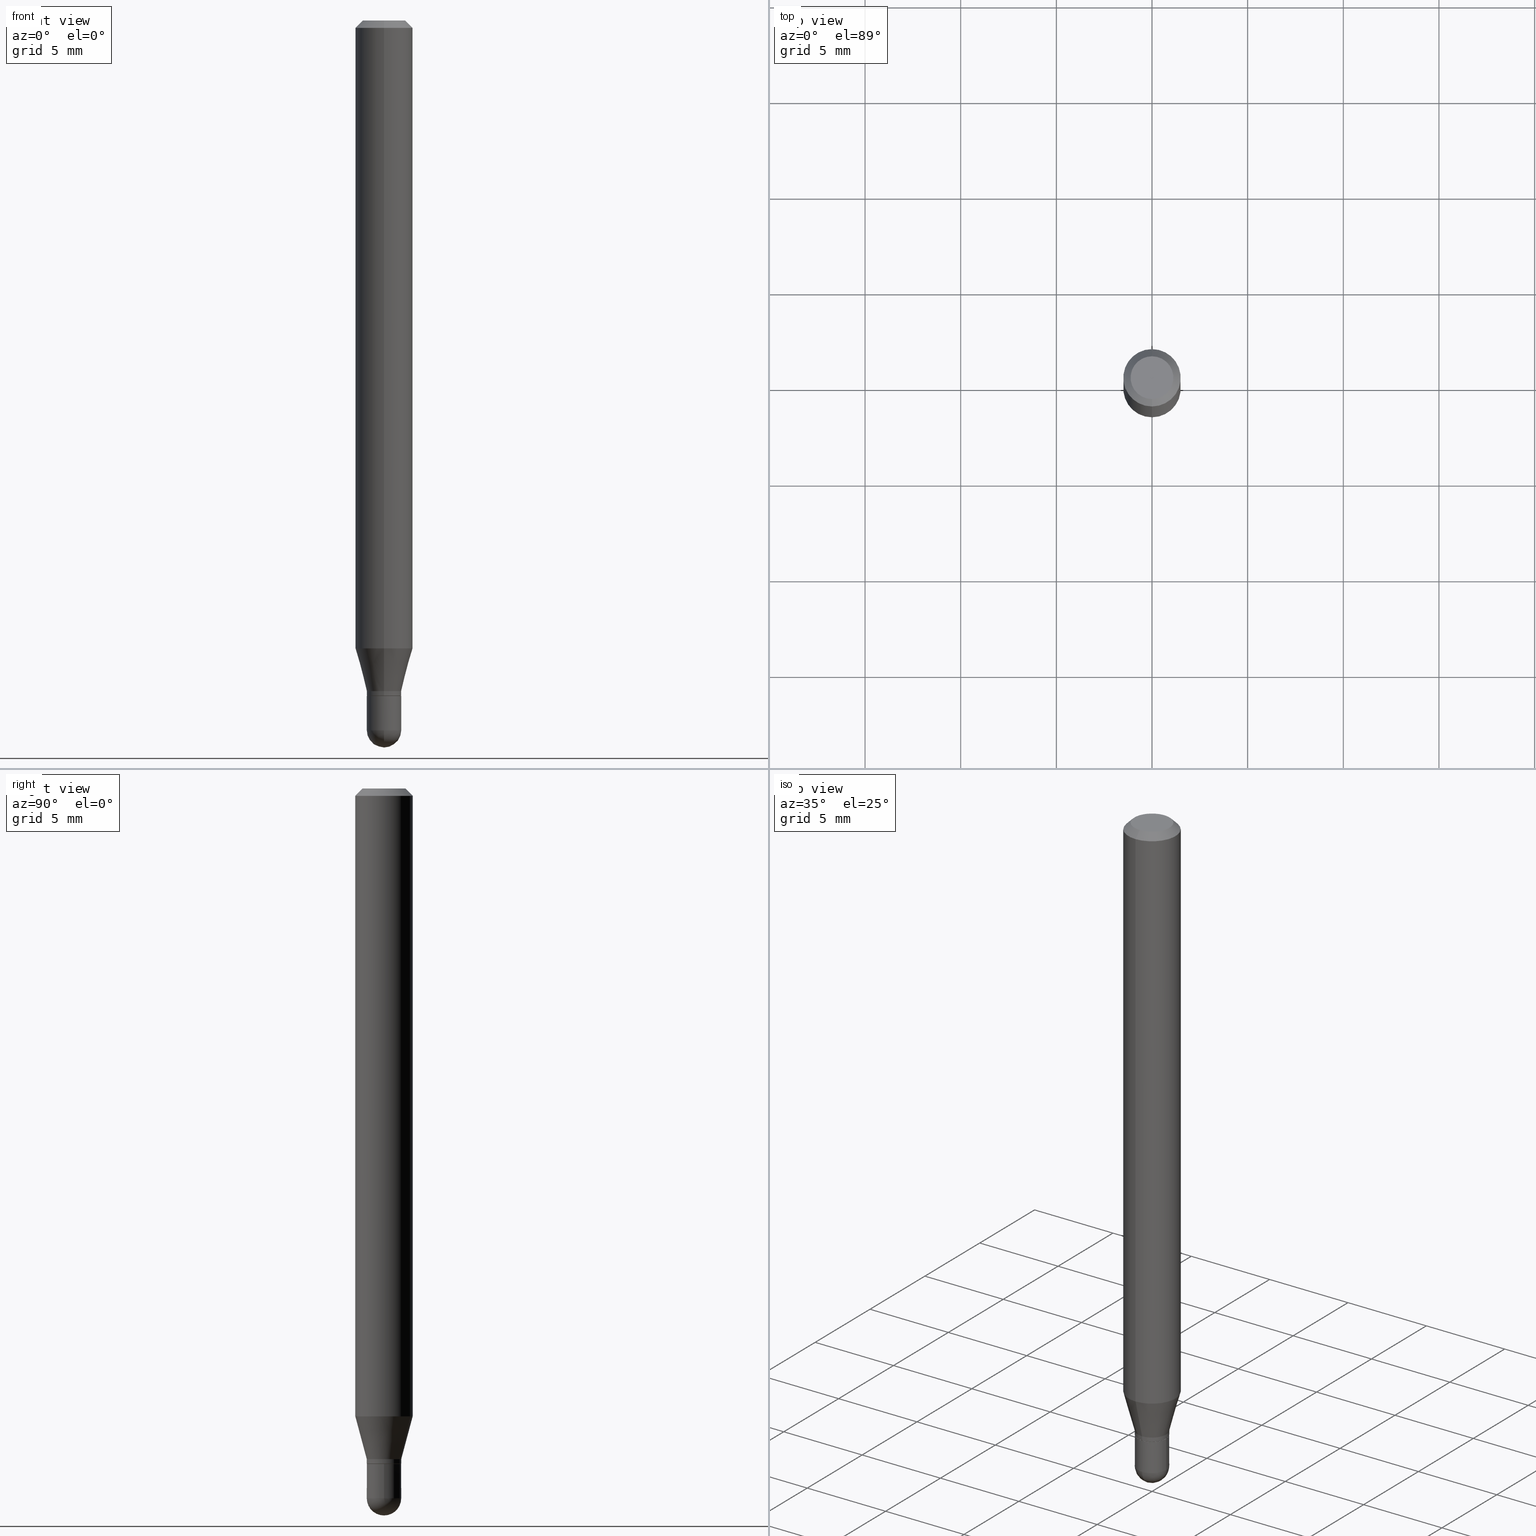
[diagram: canonical four-view strip — front | top / right | iso, engineering-drawing reading convention]
A machine part, canonical four-view strip (front | top / right | iso — engineering-drawing reading convention). The complete STEP part file that produces these views, byte-faithful:
ISO-10303-21;
HEADER;
FILE_DESCRIPTION (( 'STEP AP203' ),
    '1' );
FILE_NAME ('01913.STEP',
    '2024-03-07T19:44:01',
    ( '' ),
    ( '' ),
    'SwSTEP 2.0',
    'SolidWorks 2023',
    '' );
FILE_SCHEMA (( 'CONFIG_CONTROL_DESIGN' ));
ENDSEC;

DATA;
#1 = DIRECTION ( 'NONE',  ( -6.982962677686265133E-15, -1.000000000000000000, 3.491424182678517920E-15 ) ) ;
#2 = CARTESIAN_POINT ( 'NONE',  ( 4.195754854663704065E-16, 0.05904999999999546029, -1.292023600941374362 ) ) ;
#3 = DATE_AND_TIME ( #318, #80 ) ;
#4 = DIRECTION ( 'NONE',  ( 1.000000000000000000, -6.982962677686254089E-15, 0.000000000000000000 ) ) ;
#5 = DIRECTION ( 'NONE',  ( -2.445508718121575604E-29, 3.491424182678518314E-15, 1.000000000000000000 ) ) ;
#6 = VECTOR ( 'NONE', #502, 39.37007874015748143 ) ;
#7 = VERTEX_POINT ( 'NONE', #377 ) ;
#8 = CC_DESIGN_DATE_AND_TIME_ASSIGNMENT ( #96, #294, ( #146 ) ) ;
#9 = DIRECTION ( 'NONE',  ( -2.445508718121575324E-29, 3.491424182678518709E-15, 1.000000000000000000 ) ) ;
#10 = LINE ( 'NONE', #235, #487 ) ;
#11 = LINE ( 'NONE', #28, #357 ) ;
#12 = AXIS2_PLACEMENT_3D ( 'NONE', #129, #289, #251 ) ;
#13 = AXIS2_PLACEMENT_3D ( 'NONE', #308, #371, #18 ) ;
#14 = DIRECTION ( 'NONE',  ( 1.000000000000000000, 0.000000000000000000, 0.000000000000000000 ) ) ;
#15 = CARTESIAN_POINT ( 'NONE',  ( -4.051124067684085231E-16, -0.05905000000000005383, -0.01499999999999981730 ) ) ;
#16 = FACE_OUTER_BOUND ( 'NONE', #314, .T. ) ;
#17 = ORIENTED_EDGE ( 'NONE', *, *, #302, .F. ) ;
#18 = DIRECTION ( 'NONE',  ( -6.982962677686265133E-15, -1.000000000000000000, 0.000000000000000000 ) ) ;
#19 = SPHERICAL_SURFACE ( 'NONE', #446, 0.03544999999999988438 ) ;
#20 = ORIENTED_EDGE ( 'NONE', *, *, #217, .F. ) ;
#21 = CARTESIAN_POINT ( 'NONE',  ( -2.475460269239438146E-16, -0.03545000000000474161, -1.380099999999999660 ) ) ;
#22 = VECTOR ( 'NONE', #505, 39.37007874015748143 ) ;
#23 = EDGE_CURVE ( 'NONE', #208, #194, #413, .T. ) ;
#24 = CIRCLE ( 'NONE', #168, 0.03545000000000000234 ) ;
#25 = EDGE_LOOP ( 'NONE', ( #453, #305, #431, #271 ) ) ;
#26 = ADVANCED_FACE ( 'NONE', ( #16 ), #491, .T. ) ;
#27 = ORIENTED_EDGE ( 'NONE', *, *, #76, .F. ) ;
#28 = CARTESIAN_POINT ( 'NONE',  ( -2.475460269239775877E-16, -0.03544999999999992601, 1.237709872759532056E-16 ) ) ;
#29 = DIRECTION ( 'NONE',  ( 1.000000000000000000, -6.982962677686265922E-15, 4.883557194083112901E-29 ) ) ;
#30 = VERTEX_POINT ( 'NONE', #341 ) ;
#31 = VECTOR ( 'NONE', #330, 39.37007874015748143 ) ;
#32 = AXIS2_PLACEMENT_3D ( 'NONE', #116, #356, #1 ) ;
#33 = LOCAL_TIME ( 14, 44, 1.000000000000000000, #145 ) ;
#34 = VERTEX_POINT ( 'NONE', #193 ) ;
#35 = PERSON ( 'UNSPECIFIED', 'UNSPECIFIED', 'UNSPECIFIED', ('UNSPECIFIED'), ('UNSPECIFIED'), ('UNSPECIFIED') ) ;
#36 = FACE_OUTER_BOUND ( 'NONE', #141, .T. ) ;
#37 = DATE_AND_TIME ( #323, #324 ) ;
#38 = DIRECTION ( 'NONE',  ( -2.445508718121575604E-29, 3.491424182678518314E-15, 1.000000000000000000 ) ) ;
#39 = PRODUCT_DEFINITION_SHAPE ( 'NONE', 'NONE',  #146 ) ;
#40 = DIRECTION ( 'NONE',  ( -6.982962677686266711E-15, -1.000000000000000000, 0.000000000000000000 ) ) ;
#41 = PERSON_AND_ORGANIZATION ( #35, #266 ) ;
#42 = CARTESIAN_POINT ( 'NONE',  ( 5.836148012871053116E-46, -8.332200230911702652E-32, -2.386476061043801026E-17 ) ) ;
#43 = VECTOR ( 'NONE', #367, 39.37007874015748143 ) ;
#44 = LOCAL_TIME ( 14, 44, 1.000000000000000000, #369 ) ;
#45 = CYLINDRICAL_SURFACE ( 'NONE', #425, 0.05904999999999999832 ) ;
#46 = CARTESIAN_POINT ( 'NONE',  ( 3.599717260347271507E-16, 0.04404999999999999888, -1.776619958574267450E-16 ) ) ;
#47 = EDGE_CURVE ( 'NONE', #194, #286, #493, .T. ) ;
#48 = APPLICATION_CONTEXT ( 'configuration controlled 3d designs of mechanical parts and assemblies' ) ;
#49 = CARTESIAN_POINT ( 'NONE',  ( 3.075995059520799729E-16, 0.04404999999999999888, -1.657296155522077399E-16 ) ) ;
#50 = ORIENTED_EDGE ( 'NONE', *, *, #428, .T. ) ;
#51 = AXIS2_PLACEMENT_3D ( 'NONE', #360, #436, #4 ) ;
#52 = ADVANCED_FACE ( 'NONE', ( #459 ), #151, .T. ) ;
#53 = APPROVAL ( #267, 'UNSPECIFIED' ) ;
#54 = ORIENTED_EDGE ( 'NONE', *, *, #434, .T. ) ;
#55 = ORIENTED_EDGE ( 'NONE', *, *, #395, .F. ) ;
#56 = CARTESIAN_POINT ( 'NONE',  ( -4.123439461173736383E-16, -0.05905000000000005383, -0.01499999999999981730 ) ) ;
#57 = ADVANCED_FACE ( 'NONE', ( #102 ), #19, .T. ) ;
#58 =( CONVERSION_BASED_UNIT ( 'INCH', #297 ) LENGTH_UNIT ( ) NAMED_UNIT ( #473 ) );
#59 = CIRCLE ( 'NONE', #485, 0.03544999999999991908 ) ;
#60 = PERSON_AND_ORGANIZATION ( #35, #266 ) ;
#61 = DIRECTION ( 'NONE',  ( -6.982962677686266711E-15, -1.000000000000000000, 0.000000000000000000 ) ) ;
#62 = VERTEX_POINT ( 'NONE', #372 ) ;
#63 = ADVANCED_FACE ( 'NONE', ( #67 ), #162, .T. ) ;
#64 = DIRECTION ( 'NONE',  ( 1.000000000000000000, -6.982962677686254089E-15, 0.000000000000000000 ) ) ;
#65 = EDGE_CURVE ( 'NONE', #236, #381, #165, .T. ) ;
#66 = DIRECTION ( 'NONE',  ( 2.445508718121575324E-29, -3.491424182678518709E-15, -1.000000000000000000 ) ) ;
#67 = FACE_OUTER_BOUND ( 'NONE', #483, .T. ) ;
#68 = ORIENTED_EDGE ( 'NONE', *, *, #396, .F. ) ;
#69 = AXIS2_PLACEMENT_3D ( 'NONE', #451, #105, #64 ) ;
#70 = ORIENTED_EDGE ( 'NONE', *, *, #160, .T. ) ;
#71 = CARTESIAN_POINT ( 'NONE',  ( 3.398768016445365627E-29, -4.852381329086605500E-15, -1.389799999999999924 ) ) ;
#72 = DIRECTION ( 'NONE',  ( -6.982962677686265922E-15, -1.000000000000000000, 4.626330217890369336E-15 ) ) ;
#73 = ORIENTED_EDGE ( 'NONE', *, *, #218, .T. ) ;
#74 = EDGE_CURVE ( 'NONE', #91, #208, #411, .T. ) ;
#75 = CARTESIAN_POINT ( 'NONE',  ( 3.571974011754319692E-29, -5.099832217581240718E-15, -1.460650000000000004 ) ) ;
#76 = EDGE_CURVE ( 'NONE', #7, #104, #355, .T. ) ;
#77 = ORIENTED_EDGE ( 'NONE', *, *, #243, .F. ) ;
#78 = DIRECTION ( 'NONE',  ( -2.445468806185136597E-29, 3.491481338843145583E-15, 1.000000000000000000 ) ) ;
#79 = VECTOR ( 'NONE', #9, 39.37007874015748143 ) ;
#80 = LOCAL_TIME ( 14, 44, 1.000000000000000000, #82 ) ;
#81 = EDGE_CURVE ( 'NONE', #303, #286, #204, .T. ) ;
#82 = COORDINATED_UNIVERSAL_TIME_OFFSET ( 5, 0, .BEHIND. ) ;
#83 = DIRECTION ( 'NONE',  ( -2.445468806185136597E-29, 3.491481338843145583E-15, 1.000000000000000000 ) ) ;
#84 = APPROVAL_ROLE ( '' ) ;
#85 = CIRCLE ( 'NONE', #368, 0.05904999999999999832 ) ;
#86 = ORIENTED_EDGE ( 'NONE', *, *, #217, .T. ) ;
#87 = DIRECTION ( 'NONE',  ( 1.000000000000000000, -6.982962677686254089E-15, 0.000000000000000000 ) ) ;
#88 = DIRECTION ( 'NONE',  ( -2.445508718121575604E-29, 3.491424182678518314E-15, 1.000000000000000000 ) ) ;
#89 = CALENDAR_DATE ( 2024, 7, 3 ) ;
#90 = FACE_OUTER_BOUND ( 'NONE', #450, .T. ) ;
#91 = VERTEX_POINT ( 'NONE', #157 ) ;
#92 = CIRCLE ( 'NONE', #188, 0.03495000000000000190 ) ;
#93 = VECTOR ( 'NONE', #98, 39.37007874015748143 ) ;
#94 = DATE_AND_TIME ( #292, #33 ) ;
#95 = APPLICATION_PROTOCOL_DEFINITION ( 'international standard', 'config_control_design', 1994, #97 ) ;
#96 = DATE_AND_TIME ( #350, #387 ) ;
#97 = APPLICATION_CONTEXT ( 'configuration controlled 3d designs of mechanical parts and assemblies' ) ;
#98 = DIRECTION ( 'NONE',  ( -2.445508718121575324E-29, 3.491424182678518709E-15, 1.000000000000000000 ) ) ;
#99 = LINE ( 'NONE', #415, #293 ) ;
#100 = AXIS2_PLACEMENT_3D ( 'NONE', #42, #88, #212 ) ;
#101 = CIRCLE ( 'NONE', #13, 0.03544999999999992601 ) ;
#102 = FACE_OUTER_BOUND ( 'NONE', #186, .T. ) ;
#103 = APPROVAL_DATE_TIME ( #435, #53 ) ;
#104 = VERTEX_POINT ( 'NONE', #310 ) ;
#105 = DIRECTION ( 'NONE',  ( -2.445468806185136597E-29, 3.491481338843145583E-15, 1.000000000000000000 ) ) ;
#106 = ORIENTED_EDGE ( 'NONE', *, *, #404, .F. ) ;
#107 = ORIENTED_EDGE ( 'NONE', *, *, #353, .F. ) ;
#108 = EDGE_CURVE ( 'NONE', #223, #194, #221, .T. ) ;
#109 = ORIENTED_EDGE ( 'NONE', *, *, #113, .F. ) ;
#110 = CIRCLE ( 'NONE', #100, 0.04404999999999999888 ) ;
#111 = SECURITY_CLASSIFICATION ( '', '', #486 ) ;
#112 = ORIENTED_EDGE ( 'NONE', *, *, #325, .F. ) ;
#113 = EDGE_CURVE ( 'NONE', #469, #286, #497, .T. ) ;
#114 = ADVANCED_FACE ( 'NONE', ( #470 ), #299, .T. ) ;
#115 = ORIENTED_EDGE ( 'NONE', *, *, #478, .F. ) ;
#116 = CARTESIAN_POINT ( 'NONE',  ( 0.000000000000000000, 0.000000000000000000, 0.000000000000000000 ) ) ;
#117 = CLOSED_SHELL ( 'NONE', ( #125, #57, #392, #26, #126 ) ) ;
#118 = DIRECTION ( 'NONE',  ( -1.000000000000000000, 6.982962677686265922E-15, -4.883557194083112340E-29 ) ) ;
#119 = FACE_OUTER_BOUND ( 'NONE', #336, .T. ) ;
#120 = AXIS2_PLACEMENT_3D ( 'NONE', #291, #178, #219 ) ;
#121 = DIRECTION ( 'NONE',  ( -6.982962677686265133E-15, -1.000000000000000000, 0.000000000000000000 ) ) ;
#122 = FACE_OUTER_BOUND ( 'NONE', #477, .T. ) ;
#123 = CARTESIAN_POINT ( 'NONE',  ( 3.568942447259178762E-29, -5.104173590484217431E-15, -1.460650000000000004 ) ) ;
#124 = DIRECTION ( 'NONE',  ( -6.982962677686265133E-15, -1.000000000000000000, 3.491424182678518314E-15 ) ) ;
#125 = ADVANCED_FACE ( 'NONE', ( #424 ), #349, .T. ) ;
#126 = ADVANCED_FACE ( 'NONE', ( #249 ), #315, .T. ) ;
#127 = DIRECTION ( 'NONE',  ( 7.105427357601000281E-15, 1.000000000000000000, 0.000000000000000000 ) ) ;
#128 = FACE_OUTER_BOUND ( 'NONE', #433, .T. ) ;
#129 = CARTESIAN_POINT ( 'NONE',  ( 3.375046581879585142E-29, -4.818514514514622023E-15, -1.380099999999999660 ) ) ;
#130 = AXIS2_PLACEMENT_3D ( 'NONE', #506, #284, #277 ) ;
#131 = CARTESIAN_POINT ( 'NONE',  ( 3.375046581879585142E-29, -4.818514514514622023E-15, -1.380099999999999660 ) ) ;
#132 = CIRCLE ( 'NONE', #155, 0.03545000000000000234 ) ;
#133 = ADVANCED_FACE ( 'NONE', ( #467 ), #279, .T. ) ;
#134 = CC_DESIGN_PERSON_AND_ORGANIZATION_ASSIGNMENT ( #228, #327, ( #190 ) ) ;
#135 = COORDINATED_UNIVERSAL_TIME_OFFSET ( 5, 0, .BEHIND. ) ;
#136 = AXIS2_PLACEMENT_3D ( 'NONE', #388, #504, #40 ) ;
#137 = CIRCLE ( 'NONE', #419, 0.05904999999999999832 ) ;
#138 = FACE_OUTER_BOUND ( 'NONE', #414, .T. ) ;
#139 = CC_DESIGN_PERSON_AND_ORGANIZATION_ASSIGNMENT ( #481, #332, ( #111 ) ) ;
#140 = APPLICATION_PROTOCOL_DEFINITION ( 'international standard', 'config_control_design', 1994, #48 ) ;
#141 = EDGE_LOOP ( 'NONE', ( #373, #465, #109, #328 ) ) ;
#142 = ORIENTED_EDGE ( 'NONE', *, *, #478, .T. ) ;
#143 = CIRCLE ( 'NONE', #51, 0.03545000000000000234 ) ;
#144 = DIRECTION ( 'NONE',  ( -1.000000000000000000, 6.982962677686265922E-15, -4.876176775795935793E-29 ) ) ;
#145 = COORDINATED_UNIVERSAL_TIME_OFFSET ( 5, 0, .BEHIND. ) ;
#146 = PRODUCT_DEFINITION ( 'UNKNOWN', '', #190, #163 ) ;
#147 = DIRECTION ( 'NONE',  ( 1.000000000000000000, -6.982962677686265922E-15, 4.883557194083112901E-29 ) ) ;
#148 = VERTEX_POINT ( 'NONE', #466 ) ;
#149 = DIRECTION ( 'NONE',  ( -6.982962677686265133E-15, -1.000000000000000000, 0.000000000000000000 ) ) ;
#150 = ORIENTED_EDGE ( 'NONE', *, *, #161, .F. ) ;
#151 = CYLINDRICAL_SURFACE ( 'NONE', #244, 0.05904999999999999832 ) ;
#152 = EDGE_LOOP ( 'NONE', ( #274, #393, #270, #412 ) ) ;
#153 = CARTESIAN_POINT ( 'NONE',  ( 0.03545000000000000234, -5.223692518076700144E-15, -1.460650000000000004 ) ) ;
#154 = AXIS2_PLACEMENT_3D ( 'NONE', #169, #312, #282 ) ;
#155 = AXIS2_PLACEMENT_3D ( 'NONE', #374, #296, #443 ) ;
#156 = ORIENTED_EDGE ( 'NONE', *, *, #439, .F. ) ;
#157 = CARTESIAN_POINT ( 'NONE',  ( -2.475460269239438146E-16, -0.03545000000000474161, -1.380099999999999660 ) ) ;
#158 = DIRECTION ( 'NONE',  ( -6.982962677686265133E-15, -1.000000000000000000, 0.000000000000000000 ) ) ;
#159 = CARTESIAN_POINT ( 'NONE',  ( 3.357314426466797821E-16, 0.03544999999999510348, -1.380099999999999660 ) ) ;
#160 = EDGE_CURVE ( 'NONE', #148, #309, #475, .T. ) ;
#161 = EDGE_CURVE ( 'NONE', #194, #223, #85, .T. ) ;
#162 = CYLINDRICAL_SURFACE ( 'NONE', #458, 0.03544999999999992601 ) ;
#163 = DESIGN_CONTEXT ( 'detailed design', #48, 'design' ) ;
#164 = ORIENTED_EDGE ( 'NONE', *, *, #243, .T. ) ;
#165 = CIRCLE ( 'NONE', #154, 0.03544999999999992601 ) ;
#166 = AXIS2_PLACEMENT_3D ( 'NONE', #455, #484, #61 ) ;
#167 = EDGE_CURVE ( 'NONE', #234, #303, #110, .T. ) ;
#168 = AXIS2_PLACEMENT_3D ( 'NONE', #171, #83, #87 ) ;
#169 = CARTESIAN_POINT ( 'NONE',  ( 3.397545262086305725E-29, -4.850635616995266153E-15, -1.389300000000000201 ) ) ;
#170 = PLANE ( 'NONE',  #245 ) ;
#171 = CARTESIAN_POINT ( 'NONE',  ( 3.398712546836102570E-29, -4.852460764724203802E-15, -1.389799999999999924 ) ) ;
#172 = DIRECTION ( 'NONE',  ( 1.000000000000000000, -6.982962677686266711E-15, 4.876176775795935793E-29 ) ) ;
#173 = LINE ( 'NONE', #437, #43 ) ;
#174 = CARTESIAN_POINT ( 'NONE',  ( -3.536586717851222218E-16, -0.04404999999999999888, 1.299324746365507245E-16 ) ) ;
#175 = ORIENTED_EDGE ( 'NONE', *, *, #207, .F. ) ;
#176 = ADVANCED_FACE ( 'NONE', ( #119 ), #209, .T. ) ;
#177 = ADVANCED_FACE ( 'NONE', ( #36 ), #45, .T. ) ;
#178 = DIRECTION ( 'NONE',  ( -2.445468806185136597E-29, 3.491481338843145583E-15, 1.000000000000000000 ) ) ;
#179 = DIRECTION ( 'NONE',  ( -2.445508718121575604E-29, 3.491424182678518314E-15, 1.000000000000000000 ) ) ;
#180 = AXIS2_PLACEMENT_3D ( 'NONE', #317, #248, #394 ) ;
#181 = DIRECTION ( 'NONE',  ( -6.982962677686266711E-15, -1.000000000000000000, 0.000000000000000000 ) ) ;
#182 = DIRECTION ( 'NONE',  ( -2.445508718121575604E-29, 3.491424182678518314E-15, 1.000000000000000000 ) ) ;
#183 = APPROVAL_ROLE ( '' ) ;
#184 = DIRECTION ( 'NONE',  ( -6.982962677686265922E-15, -1.000000000000000000, 3.491424182678518709E-15 ) ) ;
#185 = ORIENTED_EDGE ( 'NONE', *, *, #448, .T. ) ;
#186 = EDGE_LOOP ( 'NONE', ( #20, #70, #489, #106 ) ) ;
#187 = DIRECTION ( 'NONE',  ( 5.024295867788190974E-15, 0.7071067811865681119, 0.7071067811865270336 ) ) ;
#188 = AXIS2_PLACEMENT_3D ( 'NONE', #490, #333, #149 ) ;
#189 = LINE ( 'NONE', #326, #79 ) ;
#190 = PRODUCT_DEFINITION_FORMATION_WITH_SPECIFIED_SOURCE ( 'ANY', '', #503, .NOT_KNOWN. ) ;
#191 = ADVANCED_BREP_SHAPE_REPRESENTATION ( '01913', ( #233, #390, #480 ), #215 ) ;
#192 = DIRECTION ( 'NONE',  ( 6.982962677686265922E-15, 1.000000000000000000, -3.491424182678518709E-15 ) ) ;
#193 = CARTESIAN_POINT ( 'NONE',  ( -0.03545000000000000234, -4.724259091325766875E-15, -1.389799999999999924 ) ) ;
#194 = VERTEX_POINT ( 'NONE', #2 ) ;
#195 = FACE_OUTER_BOUND ( 'NONE', #25, .T. ) ;
#196 = CC_DESIGN_PERSON_AND_ORGANIZATION_ASSIGNMENT ( #405, #482, ( #503 ) ) ;
#197 = ORIENTED_EDGE ( 'NONE', *, *, #207, .T. ) ;
#198 = EDGE_LOOP ( 'NONE', ( #107, #379 ) ) ;
#199 = DIRECTION ( 'NONE',  ( -2.445508718121575604E-29, 3.491424182678518314E-15, 1.000000000000000000 ) ) ;
#200 = ORIENTED_EDGE ( 'NONE', *, *, #448, .F. ) ;
#201 = ORIENTED_EDGE ( 'NONE', *, *, #226, .T. ) ;
#202 = AXIS2_PLACEMENT_3D ( 'NONE', #123, #359, #127 ) ;
#203 = CONICAL_SURFACE ( 'NONE', #426, 0.05904999999999999832, 0.7853981633974483900 ) ;
#204 = LINE ( 'NONE', #346, #6 ) ;
#205 = ORIENTED_EDGE ( 'NONE', *, *, #399, .F. ) ;
#206 = DIRECTION ( 'NONE',  ( -2.445508718121575604E-29, 3.491424182678518314E-15, 1.000000000000000000 ) ) ;
#207 = EDGE_CURVE ( 'NONE', #7, #34, #173, .T. ) ;
#208 = VERTEX_POINT ( 'NONE', #159 ) ;
#209 = CYLINDRICAL_SURFACE ( 'NONE', #32, 0.03544999999999992601 ) ;
#210 = PERSON_AND_ORGANIZATION ( #35, #266 ) ;
#211 = ADVANCED_FACE ( 'NONE', ( #122 ), #418, .T. ) ;
#212 = DIRECTION ( 'NONE',  ( -6.982962677686265133E-15, -1.000000000000000000, 3.491424182678518314E-15 ) ) ;
#213 = APPROVAL_DATE_TIME ( #37, #429 ) ;
#214 = AXIS2_PLACEMENT_3D ( 'NONE', #71, #498, #158 ) ;
#215 =( GEOMETRIC_REPRESENTATION_CONTEXT ( 3 ) GLOBAL_UNCERTAINTY_ASSIGNED_CONTEXT ( ( #421 ) ) GLOBAL_UNIT_ASSIGNED_CONTEXT ( ( #58, #445, #500 ) ) REPRESENTATION_CONTEXT ( 'NONE', 'WORKASPACE' ) );
#216 = DIRECTION ( 'NONE',  ( -6.982962677686265922E-15, -1.000000000000000000, 3.491424182678517920E-15 ) ) ;
#217 = EDGE_CURVE ( 'NONE', #148, #104, #447, .T. ) ;
#218 = EDGE_CURVE ( 'NONE', #62, #276, #397, .T. ) ;
#219 = DIRECTION ( 'NONE',  ( 1.000000000000000000, -6.982962677686254089E-15, 0.000000000000000000 ) ) ;
#220 = PERSON_AND_ORGANIZATION ( #35, #266 ) ;
#221 = CIRCLE ( 'NONE', #229, 0.05904999999999999832 ) ;
#222 = APPROVAL_PERSON_ORGANIZATION ( #41, #429, #389 ) ;
#223 = VERTEX_POINT ( 'NONE', #246 ) ;
#224 = ADVANCED_FACE ( 'NONE', ( #510 ), #170, .F. ) ;
#225 = DIRECTION ( 'NONE',  ( -6.982962677686265922E-15, -1.000000000000000000, 3.505890868245046092E-15 ) ) ;
#226 = EDGE_CURVE ( 'NONE', #303, #234, #402, .T. ) ;
#227 = LINE ( 'NONE', #21, #512 ) ;
#228 = PERSON_AND_ORGANIZATION ( #35, #266 ) ;
#229 = AXIS2_PLACEMENT_3D ( 'NONE', #463, #179, #72 ) ;
#230 = DIRECTION ( 'NONE',  ( -2.445508718121575604E-29, 3.491424182678518314E-15, 1.000000000000000000 ) ) ;
#231 = CC_DESIGN_APPROVAL ( #53, ( #146 ) ) ;
#232 = CARTESIAN_POINT ( 'NONE',  ( 2.518873998269886647E-16, 0.03544999999999510348, -1.380099999999999660 ) ) ;
#233 = MANIFOLD_SOLID_BREP ( 'Body-Move/Copy2[1]', #117 ) ;
#234 = VERTEX_POINT ( 'NONE', #174 ) ;
#235 = CARTESIAN_POINT ( 'NONE',  ( 2.483346861481889988E-16, 0.03494999999999514467, -1.389799999999999924 ) ) ;
#236 = VERTEX_POINT ( 'NONE', #430 ) ;
#237 = AXIS2_PLACEMENT_3D ( 'NONE', #441, #230, #260 ) ;
#238 = ORIENTED_EDGE ( 'NONE', *, *, #47, .F. ) ;
#239 = ORIENTED_EDGE ( 'NONE', *, *, #399, .T. ) ;
#240 = DIRECTION ( 'NONE',  ( -2.445468806185136597E-29, 3.491481338843145583E-15, 1.000000000000000000 ) ) ;
#241 = CARTESIAN_POINT ( 'NONE',  ( 4.195754854663708995E-16, 0.05904999999999994975, -0.01500000000000023016 ) ) ;
#242 = EDGE_LOOP ( 'NONE', ( #175, #457, #385, #337, #200 ) ) ;
#243 = EDGE_CURVE ( 'NONE', #208, #91, #59, .T. ) ;
#244 = AXIS2_PLACEMENT_3D ( 'NONE', #306, #449, #488 ) ;
#245 = AXIS2_PLACEMENT_3D ( 'NONE', #313, #363, #184 ) ;
#246 = CARTESIAN_POINT ( 'NONE',  ( -4.123439461173425769E-16, -0.05905000000000454330, -1.292023600941373696 ) ) ;
#247 = ORIENTED_EDGE ( 'NONE', *, *, #408, .T. ) ;
#248 = DIRECTION ( 'NONE',  ( -2.445468806185136597E-29, 3.491481338843145583E-15, 1.000000000000000000 ) ) ;
#249 = FACE_OUTER_BOUND ( 'NONE', #242, .T. ) ;
#250 = PERSON_AND_ORGANIZATION ( #35, #266 ) ;
#251 = DIRECTION ( 'NONE',  ( -6.982962677686266711E-15, -1.000000000000000000, 0.000000000000000000 ) ) ;
#252 = ORIENTED_EDGE ( 'NONE', *, *, #434, .F. ) ;
#253 = AXIS2_PLACEMENT_3D ( 'NONE', #75, #240, #382 ) ;
#254 = CC_DESIGN_SECURITY_CLASSIFICATION ( #111, ( #190 ) ) ;
#255 = PLANE ( 'NONE',  #440 ) ;
#256 = EDGE_CURVE ( 'NONE', #223, #469, #189, .T. ) ;
#257 = CONICAL_SURFACE ( 'NONE', #237, 0.03495000000000000190, 0.7853981633974739252 ) ;
#258 = CC_DESIGN_PERSON_AND_ORGANIZATION_ASSIGNMENT ( #210, #352, ( #190 ) ) ;
#259 = DIRECTION ( 'NONE',  ( 0.000000000000000000, 0.000000000000000000, 1.000000000000000000 ) ) ;
#260 = DIRECTION ( 'NONE',  ( -6.982962677686265133E-15, -1.000000000000000000, 0.000000000000000000 ) ) ;
#261 =( LENGTH_UNIT ( ) NAMED_UNIT ( * ) SI_UNIT ( $, .METRE. ) );
#262 = VECTOR ( 'NONE', #370, 39.37007874015748143 ) ;
#263 = ADVANCED_FACE ( 'NONE', ( #295 ), #257, .T. ) ;
#264 = ORIENTED_EDGE ( 'NONE', *, *, #81, .T. ) ;
#265 = AXIS2_PLACEMENT_3D ( 'NONE', #354, #278, #427 ) ;
#266 = ORGANIZATION ( 'UNSPECIFIED', 'UNSPECIFIED', '' ) ;
#267 = APPROVAL_STATUS ( 'not_yet_approved' ) ;
#268 = EDGE_LOOP ( 'NONE', ( #476, #417, #264, #54 ) ) ;
#269 = CARTESIAN_POINT ( 'NONE',  ( -2.440545455851010047E-16, -0.03495000000000485219, -1.389799999999999924 ) ) ;
#270 = ORIENTED_EDGE ( 'NONE', *, *, #108, .F. ) ;
#271 = ORIENTED_EDGE ( 'NONE', *, *, #81, .F. ) ;
#272 = AXIS2_PLACEMENT_3D ( 'NONE', #287, #78, #172 ) ;
#273 = APPROVAL_PERSON_ORGANIZATION ( #60, #53, #183 ) ;
#274 = ORIENTED_EDGE ( 'NONE', *, *, #74, .T. ) ;
#275 = EDGE_CURVE ( 'NONE', #234, #469, #410, .T. ) ;
#276 = VERTEX_POINT ( 'NONE', #269 ) ;
#277 = DIRECTION ( 'NONE',  ( 6.982962677686265922E-15, 1.000000000000000000, -3.505890868245046092E-15 ) ) ;
#278 = DIRECTION ( 'NONE',  ( -2.445508718121575604E-29, 3.491424182678518314E-15, 1.000000000000000000 ) ) ;
#279 = CONICAL_SURFACE ( 'NONE', #136, 0.03544999999999991908, 0.2617993877991501850 ) ;
#280 = DIRECTION ( 'NONE',  ( -6.982962677686265922E-15, -1.000000000000000000, 4.626330217890369336E-15 ) ) ;
#281 = CARTESIAN_POINT ( 'NONE',  ( 0.000000000000000000, 0.000000000000000000, 0.000000000000000000 ) ) ;
#282 = DIRECTION ( 'NONE',  ( -6.982962677686265133E-15, -1.000000000000000000, 0.000000000000000000 ) ) ;
#283 = CARTESIAN_POINT ( 'NONE',  ( 0.03545000000000000234, -2.475460269239781793E-16, 1.728604667019659440E-30 ) ) ;
#284 = DIRECTION ( 'NONE',  ( 2.445508718121575604E-29, -3.491424182678518314E-15, -1.000000000000000000 ) ) ;
#285 = CARTESIAN_POINT ( 'NONE',  ( 5.836148012871053116E-46, -8.332200230911702652E-32, -2.386476061043801026E-17 ) ) ;
#286 = VERTEX_POINT ( 'NONE', #241 ) ;
#287 = CARTESIAN_POINT ( 'NONE',  ( 0.000000000000000000, 0.000000000000000000, 0.000000000000000000 ) ) ;
#288 = AXIS2_PLACEMENT_3D ( 'NONE', #285, #321, #124 ) ;
#289 = DIRECTION ( 'NONE',  ( -2.445508718121575604E-29, 3.491424182678518314E-15, 1.000000000000000000 ) ) ;
#290 = APPROVAL_STATUS ( 'not_yet_approved' ) ;
#291 = CARTESIAN_POINT ( 'NONE',  ( 3.571974011754319692E-29, -5.099832217581240718E-15, -1.460650000000000004 ) ) ;
#292 = CALENDAR_DATE ( 2024, 7, 3 ) ;
#293 = VECTOR ( 'NONE', #301, 39.37007874015748143 ) ;
#294 = DATE_TIME_ROLE ( 'creation_date' ) ;
#295 = FACE_OUTER_BOUND ( 'NONE', #300, .T. ) ;
#296 = DIRECTION ( 'NONE',  ( -2.445468806185136597E-29, 3.491481338843145583E-15, 1.000000000000000000 ) ) ;
#297 = LENGTH_MEASURE_WITH_UNIT ( LENGTH_MEASURE( 0.02539999999999999897 ), #261 );
#298 = APPROVAL_DATE_TIME ( #3, #401 ) ;
#299 = CONICAL_SURFACE ( 'NONE', #130, 0.05904999999999999832, 0.7853981633974483900 ) ;
#300 = EDGE_LOOP ( 'NONE', ( #205, #73, #460, #156 ) ) ;
#301 = DIRECTION ( 'NONE',  ( -4.937700262164674260E-15, -0.7071067811865632269, 0.7071067811865319186 ) ) ;
#302 = EDGE_CURVE ( 'NONE', #438, #30, #347, .T. ) ;
#303 = VERTEX_POINT ( 'NONE', #46 ) ;
#304 = EDGE_CURVE ( 'NONE', #438, #309, #143, .T. ) ;
#305 = ORIENTED_EDGE ( 'NONE', *, *, #275, .T. ) ;
#306 = CARTESIAN_POINT ( 'NONE',  ( 0.000000000000000000, 0.000000000000000000, 0.000000000000000000 ) ) ;
#307 = ORIENTED_EDGE ( 'NONE', *, *, #65, .F. ) ;
#308 = CARTESIAN_POINT ( 'NONE',  ( 3.397545262086305725E-29, -4.850635616995266153E-15, -1.389300000000000201 ) ) ;
#309 = VERTEX_POINT ( 'NONE', #398 ) ;
#310 = CARTESIAN_POINT ( 'NONE',  ( -2.475460269239419903E-16, -0.03545000000000504692, -1.460650000000000004 ) ) ;
#311 = DIRECTION ( 'NONE',  ( -6.982962677686265133E-15, -1.000000000000000000, 3.491424182678517920E-15 ) ) ;
#312 = DIRECTION ( 'NONE',  ( -2.445508718121575604E-29, 3.491424182678518314E-15, 1.000000000000000000 ) ) ;
#313 = CARTESIAN_POINT ( 'NONE',  ( 3.398768016445365627E-29, -4.852381329086605500E-15, -1.389799999999999924 ) ) ;
#314 = EDGE_LOOP ( 'NONE', ( #331, #86, #27, #112 ) ) ;
#315 = CYLINDRICAL_SURFACE ( 'NONE', #180, 0.03545000000000000234 ) ;
#316 = DIRECTION ( 'NONE',  ( 6.982962677686265922E-15, 1.000000000000000000, -3.505890868245046092E-15 ) ) ;
#317 = CARTESIAN_POINT ( 'NONE',  ( 0.000000000000000000, 0.000000000000000000, 0.000000000000000000 ) ) ;
#318 = CALENDAR_DATE ( 2024, 7, 3 ) ;
#319 = AXIS2_PLACEMENT_3D ( 'NONE', #472, #182, #225 ) ;
#320 = ORIENTED_EDGE ( 'NONE', *, *, #396, .T. ) ;
#321 = DIRECTION ( 'NONE',  ( -2.445508718121575604E-29, 3.491424182678518314E-15, 1.000000000000000000 ) ) ;
#322 = CC_DESIGN_DATE_AND_TIME_ASSIGNMENT ( #94, #496, ( #111 ) ) ;
#323 = CALENDAR_DATE ( 2024, 7, 3 ) ;
#324 = LOCAL_TIME ( 14, 44, 1.000000000000000000, #135 ) ;
#325 = EDGE_CURVE ( 'NONE', #309, #7, #334, .T. ) ;
#326 = CARTESIAN_POINT ( 'NONE',  ( -4.123439461173739834E-16, -0.05904999999999999832, 2.061685979871664868E-16 ) ) ;
#327 = PERSON_AND_ORGANIZATION_ROLE ( 'design_supplier' ) ;
#328 = ORIENTED_EDGE ( 'NONE', *, *, #256, .F. ) ;
#329 = MECHANICAL_CONTEXT ( 'NONE', #97, 'mechanical' ) ;
#330 = DIRECTION ( 'NONE',  ( -2.445508718121575324E-29, 3.491424182678518709E-15, 1.000000000000000000 ) ) ;
#331 = ORIENTED_EDGE ( 'NONE', *, *, #160, .F. ) ;
#332 = PERSON_AND_ORGANIZATION_ROLE ( 'classification_officer' ) ;
#333 = DIRECTION ( 'NONE',  ( -2.445508718121575604E-29, 3.491424182678518314E-15, 1.000000000000000000 ) ) ;
#334 = CIRCLE ( 'NONE', #120, 0.03545000000000000234 ) ;
#335 = CARTESIAN_POINT ( 'NONE',  ( 3.568942447259178762E-29, -5.104173590484217431E-15, -1.460650000000000004 ) ) ;
#336 = EDGE_LOOP ( 'NONE', ( #115, #339, #50, #77 ) ) ;
#337 = ORIENTED_EDGE ( 'NONE', *, *, #302, .T. ) ;
#338 = CARTESIAN_POINT ( 'NONE',  ( 3.568942447259178762E-29, -5.104173590484217431E-15, -1.460650000000000004 ) ) ;
#339 = ORIENTED_EDGE ( 'NONE', *, *, #439, .T. ) ;
#340 = CARTESIAN_POINT ( 'NONE',  ( 3.668263077182369029E-31, -5.237136274017786297E-17, -0.01500000000000002373 ) ) ;
#341 = CARTESIAN_POINT ( 'NONE',  ( 0.03545000000000000234, -5.100006791648181685E-15, -1.389799999999999924 ) ) ;
#342 = EDGE_LOOP ( 'NONE', ( #238, #494, #348, #252 ) ) ;
#343 = ADVANCED_FACE ( 'NONE', ( #90 ), #255, .F. ) ;
#344 = ADVANCED_FACE ( 'NONE', ( #138 ), #376, .T. ) ;
#345 = DIRECTION ( 'NONE',  ( -2.445508718121575324E-29, 3.491424182678518709E-15, 1.000000000000000000 ) ) ;
#346 = CARTESIAN_POINT ( 'NONE',  ( 4.123439461173743285E-16, 0.05904999999999994975, -0.01500000000000023016 ) ) ;
#347 = LINE ( 'NONE', #283, #22 ) ;
#348 = ORIENTED_EDGE ( 'NONE', *, *, #256, .T. ) ;
#349 = CYLINDRICAL_SURFACE ( 'NONE', #272, 0.03545000000000000234 ) ;
#350 = CALENDAR_DATE ( 2024, 7, 3 ) ;
#351 = CARTESIAN_POINT ( 'NONE',  ( 0.000000000000000000, 0.000000000000000000, 0.000000000000000000 ) ) ;
#352 = PERSON_AND_ORGANIZATION_ROLE ( 'creator' ) ;
#353 = EDGE_CURVE ( 'NONE', #276, #62, #92, .T. ) ;
#354 = CARTESIAN_POINT ( 'NONE',  ( 3.398768016445365627E-29, -4.852381329086605500E-15, -1.389799999999999924 ) ) ;
#355 = CIRCLE ( 'NONE', #253, 0.03545000000000000234 ) ;
#356 = DIRECTION ( 'NONE',  ( -2.445508718121575604E-29, 3.491424182678518314E-15, 1.000000000000000000 ) ) ;
#357 = VECTOR ( 'NONE', #345, 39.37007874015748143 ) ;
#358 = CARTESIAN_POINT ( 'NONE',  ( 3.668263077182369029E-31, -5.237136274017786297E-17, -0.01500000000000002373 ) ) ;
#359 = DIRECTION ( 'NONE',  ( 1.000000000000000000, -7.105427357601001070E-15, 4.926315508542082329E-29 ) ) ;
#360 = CARTESIAN_POINT ( 'NONE',  ( 3.571974011754319692E-29, -5.099832217581240718E-15, -1.460650000000000004 ) ) ;
#361 = VECTOR ( 'NONE', #474, 39.37007874015748143 ) ;
#362 = APPROVAL_STATUS ( 'not_yet_approved' ) ;
#363 = DIRECTION ( 'NONE',  ( -2.445508718121575324E-29, 3.491424182678518709E-15, 1.000000000000000000 ) ) ;
#364 = ORIENTED_EDGE ( 'NONE', *, *, #23, .F. ) ;
#365 = CARTESIAN_POINT ( 'NONE',  ( 0.000000000000000000, 0.000000000000000000, 0.000000000000000000 ) ) ;
#366 = DIRECTION ( 'NONE',  ( -1.807323732225329350E-15, -0.2588190451025180194, 0.9659258262890689783 ) ) ;
#367 = DIRECTION ( 'NONE',  ( -2.445468806185136877E-29, 3.491481338843145188E-15, 1.000000000000000000 ) ) ;
#368 = AXIS2_PLACEMENT_3D ( 'NONE', #501, #462, #280 ) ;
#369 = COORDINATED_UNIVERSAL_TIME_OFFSET ( 5, 0, .BEHIND. ) ;
#370 = DIRECTION ( 'NONE',  ( 1.839019923739599526E-15, 0.2588190451025248473, 0.9659258262890670910 ) ) ;
#371 = DIRECTION ( 'NONE',  ( -2.445508718121575604E-29, 3.491424182678518314E-15, 1.000000000000000000 ) ) ;
#372 = CARTESIAN_POINT ( 'NONE',  ( 2.501110429875889550E-16, 0.03494999999999514467, -1.389799999999999924 ) ) ;
#373 = ORIENTED_EDGE ( 'NONE', *, *, #108, .T. ) ;
#374 = CARTESIAN_POINT ( 'NONE',  ( 3.571974011754319692E-29, -5.099832217581240718E-15, -1.460650000000000004 ) ) ;
#375 = CC_DESIGN_PERSON_AND_ORGANIZATION_ASSIGNMENT ( #250, #507, ( #146 ) ) ;
#376 = CONICAL_SURFACE ( 'NONE', #166, 0.03544999999999991908, 0.2617993877991501850 ) ;
#377 = CARTESIAN_POINT ( 'NONE',  ( -0.03545000000000000234, -4.724259091325766875E-15, -1.460650000000000004 ) ) ;
#378 = CC_DESIGN_APPROVAL ( #429, ( #190 ) ) ;
#379 = ORIENTED_EDGE ( 'NONE', *, *, #218, .F. ) ;
#380 = ORIENTED_EDGE ( 'NONE', *, *, #74, .F. ) ;
#381 = VERTEX_POINT ( 'NONE', #468 ) ;
#382 = DIRECTION ( 'NONE',  ( 1.000000000000000000, -6.982962677686254089E-15, 0.000000000000000000 ) ) ;
#383 = CLOSED_SHELL ( 'NONE', ( #63, #211, #442, #177, #133, #344, #52, #114, #343, #224, #263, #176 ) ) ;
#384 = AXIS2_PLACEMENT_3D ( 'NONE', #464, #118, #121 ) ;
#385 = ORIENTED_EDGE ( 'NONE', *, *, #404, .T. ) ;
#386 = CC_DESIGN_APPROVAL ( #401, ( #111 ) ) ;
#387 = LOCAL_TIME ( 14, 44, 1.000000000000000000, #391 ) ;
#388 = CARTESIAN_POINT ( 'NONE',  ( 3.375046581879585142E-29, -4.818514514514622023E-15, -1.380099999999999660 ) ) ;
#389 = APPROVAL_ROLE ( '' ) ;
#390 = MANIFOLD_SOLID_BREP ( 'Body-Move/Copy2[2]', #383 ) ;
#391 = COORDINATED_UNIVERSAL_TIME_OFFSET ( 5, 0, .BEHIND. ) ;
#392 = ADVANCED_FACE ( 'NONE', ( #128 ), #432, .F. ) ;
#393 = ORIENTED_EDGE ( 'NONE', *, *, #23, .T. ) ;
#394 = DIRECTION ( 'NONE',  ( 1.000000000000000000, -6.982962677686266711E-15, 4.876176775795935793E-29 ) ) ;
#395 = EDGE_CURVE ( 'NONE', #276, #236, #99, .T. ) ;
#396 = EDGE_CURVE ( 'NONE', #30, #34, #479, .T. ) ;
#397 = CIRCLE ( 'NONE', #265, 0.03495000000000000190 ) ;
#398 = CARTESIAN_POINT ( 'NONE',  ( 2.518873998269907848E-16, 0.03544999999999483981, -1.460650000000000004 ) ) ;
#399 = EDGE_CURVE ( 'NONE', #62, #381, #10, .T. ) ;
#400 = CARTESIAN_POINT ( 'NONE',  ( 2.518873998269549409E-16, 0.03544999999999992601, -1.237709872759532056E-16 ) ) ;
#401 = APPROVAL ( #362, 'UNSPECIFIED' ) ;
#402 = CIRCLE ( 'NONE', #288, 0.04404999999999999888 ) ;
#403 = APPROVAL_PERSON_ORGANIZATION ( #220, #401, #84 ) ;
#404 = EDGE_CURVE ( 'NONE', #104, #438, #132, .T. ) ;
#405 = PERSON_AND_ORGANIZATION ( #35, #266 ) ;
#406 = ORIENTED_EDGE ( 'NONE', *, *, #353, .T. ) ;
#407 = LINE ( 'NONE', #400, #93 ) ;
#408 = EDGE_CURVE ( 'NONE', #91, #223, #227, .T. ) ;
#409 = SHAPE_DEFINITION_REPRESENTATION ( #39, #191 ) ;
#410 = LINE ( 'NONE', #15, #361 ) ;
#411 = CIRCLE ( 'NONE', #12, 0.03544999999999991908 ) ;
#412 = ORIENTED_EDGE ( 'NONE', *, *, #408, .F. ) ;
#413 = LINE ( 'NONE', #232, #262 ) ;
#414 = EDGE_LOOP ( 'NONE', ( #364, #164, #247, #150 ) ) ;
#415 = CARTESIAN_POINT ( 'NONE',  ( -2.440545455851010047E-16, -0.03495000000000485219, -1.389799999999999924 ) ) ;
#416 = CARTESIAN_POINT ( 'NONE',  ( 4.195754854663390985E-16, 0.05904999999999999832, -2.061685979871664868E-16 ) ) ;
#417 = ORIENTED_EDGE ( 'NONE', *, *, #226, .F. ) ;
#418 = CONICAL_SURFACE ( 'NONE', #214, 0.03495000000000000190, 0.7853981633974739252 ) ;
#419 = AXIS2_PLACEMENT_3D ( 'NONE', #340, #199, #495 ) ;
#420 = ORIENTED_EDGE ( 'NONE', *, *, #428, .F. ) ;
#421 = UNCERTAINTY_MEASURE_WITH_UNIT (LENGTH_MEASURE( 1.000000000000000082E-05 ), #58, 'distance_accuracy_value', 'NONE');
#422 = ORIENTED_EDGE ( 'NONE', *, *, #167, .T. ) ;
#423 = ORIENTED_EDGE ( 'NONE', *, *, #65, .T. ) ;
#424 = FACE_OUTER_BOUND ( 'NONE', #499, .T. ) ;
#425 = AXIS2_PLACEMENT_3D ( 'NONE', #351, #206, #216 ) ;
#426 = AXIS2_PLACEMENT_3D ( 'NONE', #358, #511, #316 ) ;
#427 = DIRECTION ( 'NONE',  ( -6.982962677686265133E-15, -1.000000000000000000, 0.000000000000000000 ) ) ;
#428 = EDGE_CURVE ( 'NONE', #236, #91, #11, .T. ) ;
#429 = APPROVAL ( #290, 'UNSPECIFIED' ) ;
#430 = CARTESIAN_POINT ( 'NONE',  ( -2.475460269239444555E-16, -0.03545000000000490120, -1.389300000000000201 ) ) ;
#431 = ORIENTED_EDGE ( 'NONE', *, *, #113, .T. ) ;
#432 = PLANE ( 'NONE',  #509 ) ;
#433 = EDGE_LOOP ( 'NONE', ( #320, #185 ) ) ;
#434 = EDGE_CURVE ( 'NONE', #286, #469, #137, .T. ) ;
#435 = DATE_AND_TIME ( #89, #44 ) ;
#436 = DIRECTION ( 'NONE',  ( -2.445468806185136597E-29, 3.491481338843145583E-15, 1.000000000000000000 ) ) ;
#437 = CARTESIAN_POINT ( 'NONE',  ( -0.03545000000000000234, 2.518873998269555325E-16, -1.743762489495364089E-30 ) ) ;
#438 = VERTEX_POINT ( 'NONE', #153 ) ;
#439 = EDGE_CURVE ( 'NONE', #381, #236, #101, .T. ) ;
#440 = AXIS2_PLACEMENT_3D ( 'NONE', #49, #66, #192 ) ;
#441 = CARTESIAN_POINT ( 'NONE',  ( 3.398768016445365627E-29, -4.852381329086605500E-15, -1.389799999999999924 ) ) ;
#442 = ADVANCED_FACE ( 'NONE', ( #195 ), #203, .T. ) ;
#443 = DIRECTION ( 'NONE',  ( 1.000000000000000000, -6.982962677686254089E-15, 0.000000000000000000 ) ) ;
#444 = DIRECTION ( 'NONE',  ( 2.438088387897960049E-29, -3.491481338843145188E-15, -1.000000000000000000 ) ) ;
#445 =( NAMED_UNIT ( * ) PLANE_ANGLE_UNIT ( ) SI_UNIT ( $, .RADIAN. ) );
#446 = AXIS2_PLACEMENT_3D ( 'NONE', #335, #147, #452 ) ;
#447 = CIRCLE ( 'NONE', #384, 0.03544999999999988438 ) ;
#448 = EDGE_CURVE ( 'NONE', #34, #30, #24, .T. ) ;
#449 = DIRECTION ( 'NONE',  ( -2.445508718121575604E-29, 3.491424182678518314E-15, 1.000000000000000000 ) ) ;
#450 = EDGE_LOOP ( 'NONE', ( #201, #422 ) ) ;
#451 = CARTESIAN_POINT ( 'NONE',  ( 3.398712546836102570E-29, -4.852460764724203802E-15, -1.389799999999999924 ) ) ;
#452 = DIRECTION ( 'NONE',  ( -6.982962677686265922E-15, -1.000000000000000000, 0.000000000000000000 ) ) ;
#453 = ORIENTED_EDGE ( 'NONE', *, *, #167, .F. ) ;
#454 = PRODUCT_RELATED_PRODUCT_CATEGORY ( 'detail', '', ( #503 ) ) ;
#455 = CARTESIAN_POINT ( 'NONE',  ( 3.375046581879585142E-29, -4.818514514514622023E-15, -1.380099999999999660 ) ) ;
#456 = DIRECTION ( 'NONE',  ( -6.982962677686265922E-15, -1.000000000000000000, 0.000000000000000000 ) ) ;
#457 = ORIENTED_EDGE ( 'NONE', *, *, #76, .T. ) ;
#458 = AXIS2_PLACEMENT_3D ( 'NONE', #281, #38, #311 ) ;
#459 = FACE_OUTER_BOUND ( 'NONE', #342, .T. ) ;
#460 = ORIENTED_EDGE ( 'NONE', *, *, #395, .T. ) ;
#461 = ORIENTED_EDGE ( 'NONE', *, *, #325, .T. ) ;
#462 = DIRECTION ( 'NONE',  ( -2.445508718121575604E-29, 3.491424182678518314E-15, 1.000000000000000000 ) ) ;
#463 = CARTESIAN_POINT ( 'NONE',  ( 3.159654980120961895E-29, -4.511002444918093055E-15, -1.292023600941374140 ) ) ;
#464 = CARTESIAN_POINT ( 'NONE',  ( 3.568942447259178762E-29, -5.104173590484217431E-15, -1.460650000000000004 ) ) ;
#465 = ORIENTED_EDGE ( 'NONE', *, *, #47, .T. ) ;
#466 = CARTESIAN_POINT ( 'NONE',  ( 3.654118534190870994E-29, -5.230117290397695912E-15, -1.496099999999999541 ) ) ;
#467 = FACE_OUTER_BOUND ( 'NONE', #152, .T. ) ;
#468 = CARTESIAN_POINT ( 'NONE',  ( 2.518873998269880730E-16, 0.03544999999999495083, -1.389300000000000201 ) ) ;
#469 = VERTEX_POINT ( 'NONE', #56 ) ;
#470 = FACE_OUTER_BOUND ( 'NONE', #268, .T. ) ;
#471 = CARTESIAN_POINT ( 'NONE',  ( 2.475460269240121497E-16, 0.03544999999999515206, -1.389799999999999924 ) ) ;
#472 = CARTESIAN_POINT ( 'NONE',  ( 3.668263077182369029E-31, -5.237136274017786297E-17, -0.01500000000000002373 ) ) ;
#473 = DIMENSIONAL_EXPONENTS ( 1.000000000000000000, 0.000000000000000000, 0.000000000000000000, 0.000000000000000000, 0.000000000000000000, 0.000000000000000000, 0.000000000000000000 ) ;
#474 = DIRECTION ( 'NONE',  ( -4.851104656540964275E-15, -0.7071067811865500152, -0.7071067811865450192 ) ) ;
#475 = CIRCLE ( 'NONE', #202, 0.03544999999999988438 ) ;
#476 = ORIENTED_EDGE ( 'NONE', *, *, #275, .F. ) ;
#477 = EDGE_LOOP ( 'NONE', ( #406, #239, #307, #55 ) ) ;
#478 = EDGE_CURVE ( 'NONE', #381, #208, #407, .T. ) ;
#479 = CIRCLE ( 'NONE', #69, 0.03545000000000000234 ) ;
#480 = AXIS2_PLACEMENT_3D ( 'NONE', #365, #259, #14 ) ;
#481 = PERSON_AND_ORGANIZATION ( #35, #266 ) ;
#482 = PERSON_AND_ORGANIZATION_ROLE ( 'design_owner' ) ;
#483 = EDGE_LOOP ( 'NONE', ( #423, #142, #380, #420 ) ) ;
#484 = DIRECTION ( 'NONE',  ( -2.445508718121575604E-29, 3.491424182678518314E-15, 1.000000000000000000 ) ) ;
#485 = AXIS2_PLACEMENT_3D ( 'NONE', #131, #5, #181 ) ;
#486 = SECURITY_CLASSIFICATION_LEVEL ( 'unclassified' ) ;
#487 = VECTOR ( 'NONE', #187, 39.37007874015748143 ) ;
#488 = DIRECTION ( 'NONE',  ( -6.982962677686265922E-15, -1.000000000000000000, 3.491424182678517920E-15 ) ) ;
#489 = ORIENTED_EDGE ( 'NONE', *, *, #304, .F. ) ;
#490 = CARTESIAN_POINT ( 'NONE',  ( 3.398768016445365627E-29, -4.852381329086605500E-15, -1.389799999999999924 ) ) ;
#491 = SPHERICAL_SURFACE ( 'NONE', #508, 0.03544999999999988438 ) ;
#492 = ORIENTED_EDGE ( 'NONE', *, *, #304, .T. ) ;
#493 = LINE ( 'NONE', #416, #31 ) ;
#494 = ORIENTED_EDGE ( 'NONE', *, *, #161, .T. ) ;
#495 = DIRECTION ( 'NONE',  ( -6.982962677686265922E-15, -1.000000000000000000, 3.505890868245046092E-15 ) ) ;
#496 = DATE_TIME_ROLE ( 'classification_date' ) ;
#497 = CIRCLE ( 'NONE', #319, 0.05904999999999999832 ) ;
#498 = DIRECTION ( 'NONE',  ( -2.445508718121575604E-29, 3.491424182678518314E-15, 1.000000000000000000 ) ) ;
#499 = EDGE_LOOP ( 'NONE', ( #461, #197, #68, #17, #492 ) ) ;
#500 =( NAMED_UNIT ( * ) SI_UNIT ( $, .STERADIAN. ) SOLID_ANGLE_UNIT ( ) );
#501 = CARTESIAN_POINT ( 'NONE',  ( 3.159654980120961895E-29, -4.511002444918093055E-15, -1.292023600941374140 ) ) ;
#502 = DIRECTION ( 'NONE',  ( 4.937700262164548042E-15, 0.7071067811865451302, -0.7071067811865499042 ) ) ;
#503 = PRODUCT ( '01913', '01913', '', ( #329 ) ) ;
#504 = DIRECTION ( 'NONE',  ( -2.445508718121575604E-29, 3.491424182678518314E-15, 1.000000000000000000 ) ) ;
#505 = DIRECTION ( 'NONE',  ( -2.445468806185136877E-29, 3.491481338843145188E-15, 1.000000000000000000 ) ) ;
#506 = CARTESIAN_POINT ( 'NONE',  ( 3.668263077182369029E-31, -5.237136274017786297E-17, -0.01500000000000002373 ) ) ;
#507 = PERSON_AND_ORGANIZATION_ROLE ( 'creator' ) ;
#508 = AXIS2_PLACEMENT_3D ( 'NONE', #338, #29, #456 ) ;
#509 = AXIS2_PLACEMENT_3D ( 'NONE', #471, #444, #144 ) ;
#510 = FACE_OUTER_BOUND ( 'NONE', #198, .T. ) ;
#511 = DIRECTION ( 'NONE',  ( 2.445508718121575604E-29, -3.491424182678518314E-15, -1.000000000000000000 ) ) ;
#512 = VECTOR ( 'NONE', #366, 39.37007874015749564 ) ;
ENDSEC;
END-ISO-10303-21;
